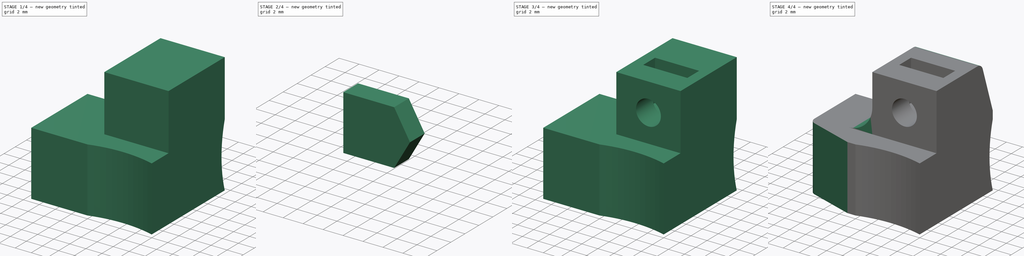
[diagram: build sequence overview — one tinted view per stage of 4, left to right]
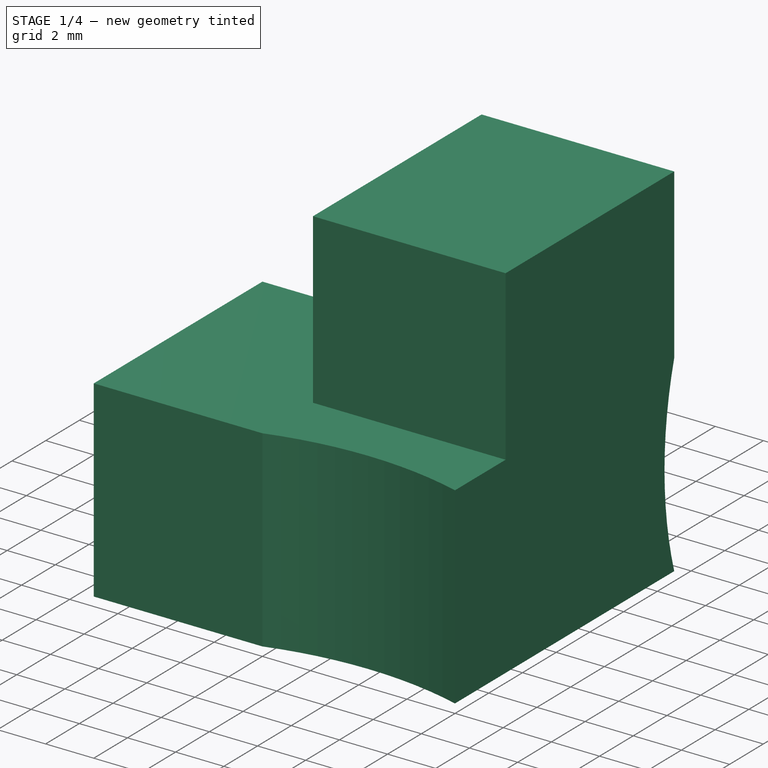
[diagram: stage 1 of 4 — iso view after this stage's code; geometry added in this stage tinted green]
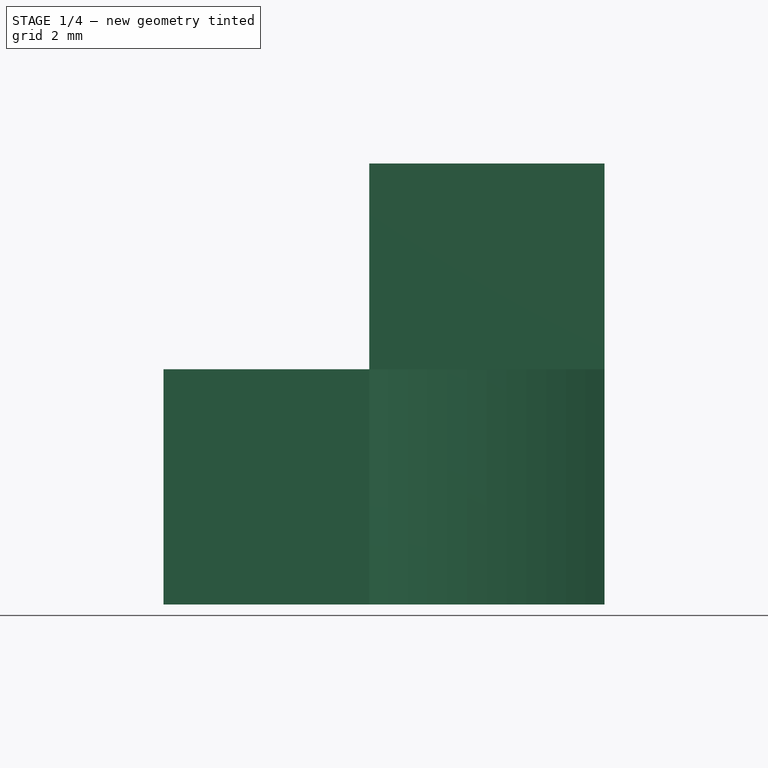
[diagram: stage 1 of 4 — front view after this stage's code; geometry added in this stage tinted green]
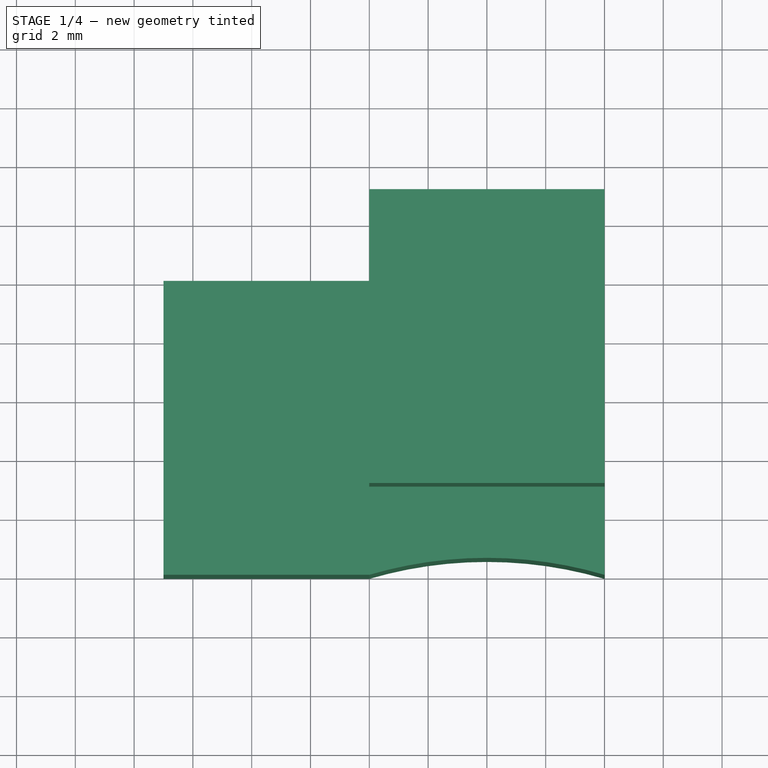
[diagram: stage 1 of 4 — top view after this stage's code; geometry added in this stage tinted green]
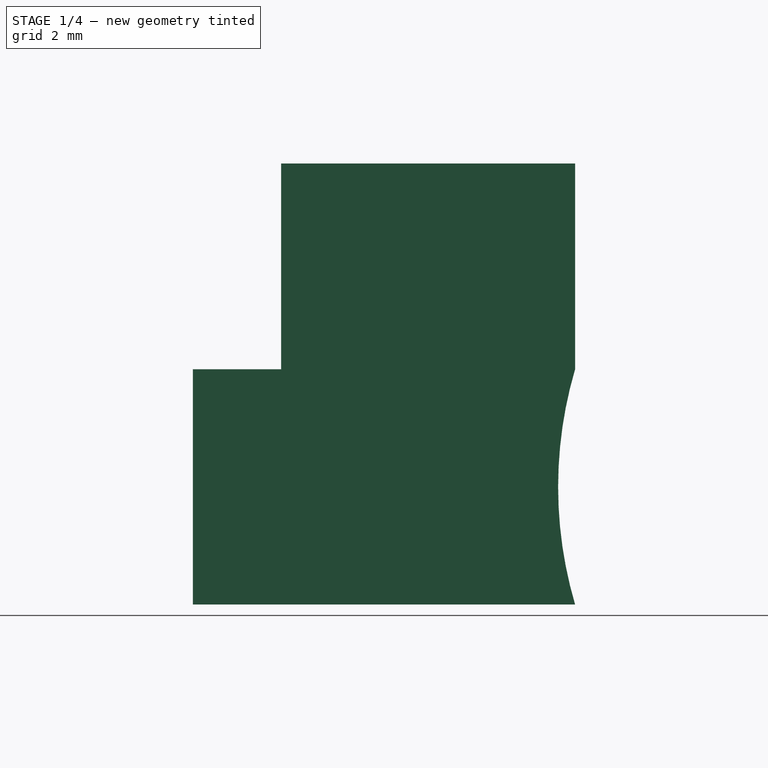
[diagram: stage 1 of 4 — right view after this stage's code; geometry added in this stage tinted green]
FCSTD DOCUMENT  (FreeCAD 0.16RUnknown)
Label: joint-base-s.010
License: All rights reserved
LicenseURL: http://en.wikipedia.org/wiki/All_rights_reserved
objects: Sketcher::SketchObject×7, Part::Extrusion×3, PartDesign::Pocket×3, Part::Cut×2, Part::Chamfer×2, PartDesign::Pad×1, Part::Fillet×1
note: 23 computed .brp shape members not serialized (recipe doc carries the construction recipe); baked Part::Feature solids carry a one-line shape summary decoded from their .brp

FEATURE [Sketcher::SketchObject] Sketch
  sketch-geometry (8):
    g0: LineSegment StartX=0 StartY=0 StartZ=0 EndX=0 EndY=3 EndZ=0
    g1: LineSegment StartX=0 StartY=3 StartZ=0 EndX=8 EndY=3 EndZ=0
    g2: LineSegment StartX=8 StartY=3 StartZ=0 EndX=8 EndY=-10 EndZ=0
    g3: LineSegment StartX=0 StartY=-10 StartZ=0 EndX=-7 EndY=-10 EndZ=0
    g4: LineSegment StartX=-7 StartY=-10 StartZ=0 EndX=-7 EndY=0 EndZ=0
    g5: LineSegment StartX=-7 StartY=0 StartZ=0 EndX=0 EndY=0 EndZ=0
    g6: LineSegment [constr] StartX=0 StartY=-10 StartZ=0 EndX=8 EndY=-10 EndZ=0
    g7: ArcOfCircle CenterX=4 CenterY=-23.5729 CenterZ=0 NormalX=0 NormalY=0 NormalZ=1 Radius=14.15 StartAngle=1.2842 EndAngle=1.85739
  constraints (23):
    c: Vertical(g0)
    c: Coincident(g0,g1)
    c: Horizontal(g1)
    c: Coincident(g1,g2)
    c: Vertical(g2)
    c: Horizontal(g3)
    c: Coincident(g3,g4)
    c: Vertical(g4)
    c: Coincident(g4,g5)
    c: Horizontal(g5)
    c: Coincident(g0,g5)
    c: DistanceY(g0,g0) = 3
    c: DistanceX(g1,g1) = 8
    c: DistanceY(g4,g4) = 10
    c: Horizontal(g6)
    c: Coincident(g3,g6)
    c: Coincident(g2,g6)
    c: Coincident(g2,g7)
    c: Coincident(g3,g7)
    c: Radius(g7) = 14.15
    c: Coincident(g0,g-1)
    c: DistanceX(g3,g3) = 7
    c: DistanceX(g6,g6) = 8
FEATURE [Part::Extrusion] Extrude
  Base = -> Sketch
  Dir = (0,0,8)
  Solid = true
FEATURE [Sketcher::SketchObject] Sketch001
  ExternalGeometry = -> [Extrude]
  Placement = pos=(0,0,8) rot=(0,0,1;0rad)
  Support = -> Extrude [Face9]
  sketch-geometry (4):
    g0: LineSegment StartX=0 StartY=3 StartZ=0 EndX=8 EndY=3 EndZ=0
    g1: LineSegment StartX=8 StartY=3 StartZ=0 EndX=8 EndY=-7 EndZ=0
    g2: LineSegment StartX=8 StartY=-7 StartZ=0 EndX=0 EndY=-7 EndZ=0
    g3: LineSegment StartX=0 StartY=-7 StartZ=0 EndX=0 EndY=3 EndZ=0
  constraints (12):
    c: Coincident(g0,g1)
    c: Coincident(g1,g2)
    c: Coincident(g2,g3)
    c: Coincident(g3,g0)
    c: Horizontal(g0)
    c: Horizontal(g2)
    c: Vertical(g1)
    c: Vertical(g3)
    c: Coincident(g0,g-3)
    c: Coincident(g0,g-4)
    c: Coincident(g0,g-3)
    c: DistanceY(g-4,g1) = 3
FEATURE [PartDesign::Pad] Pad
  Length = 7
  Length2 = 100
  Sketch = -> Sketch001
  Type = 0
FEATURE [Sketcher::SketchObject] Sketch002
  ExternalGeometry = -> [Pad]
  Placement = pos=(0,0,0) rot=(0.57735,-0.57735,-0.57735;2.0944rad)
  Support = -> Pad [Face3]
  sketch-geometry (2):
    g0: LineSegment StartX=-3 StartY=0 StartZ=0 EndX=-3 EndY=8 EndZ=0
    g1: ArcOfCircle CenterX=-16.5729 CenterY=4 CenterZ=0 NormalX=0 NormalY=0 NormalZ=1 Radius=14.15 StartAngle=5.99659 EndAngle=6.56978
  constraints (6):
    c: Vertical(g0)
    c: Coincident(g0,g-3)
    c: DistanceY(g0,g0) = 8
    c: Coincident(g0,g1)
    c: Coincident(g0,g1)
    c: Radius(g1) = 14.15
FEATURE [PartDesign::Pocket] Pocket
  Length = 5
  Sketch = -> Sketch002
  Type = 1
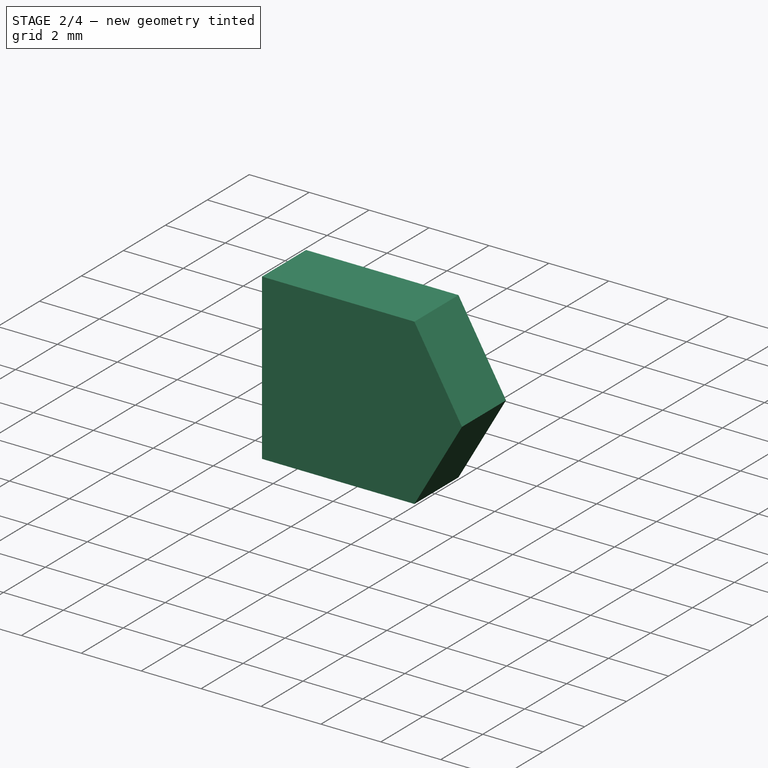
[diagram: stage 2 of 4 — iso view after this stage's code; geometry added in this stage tinted green]
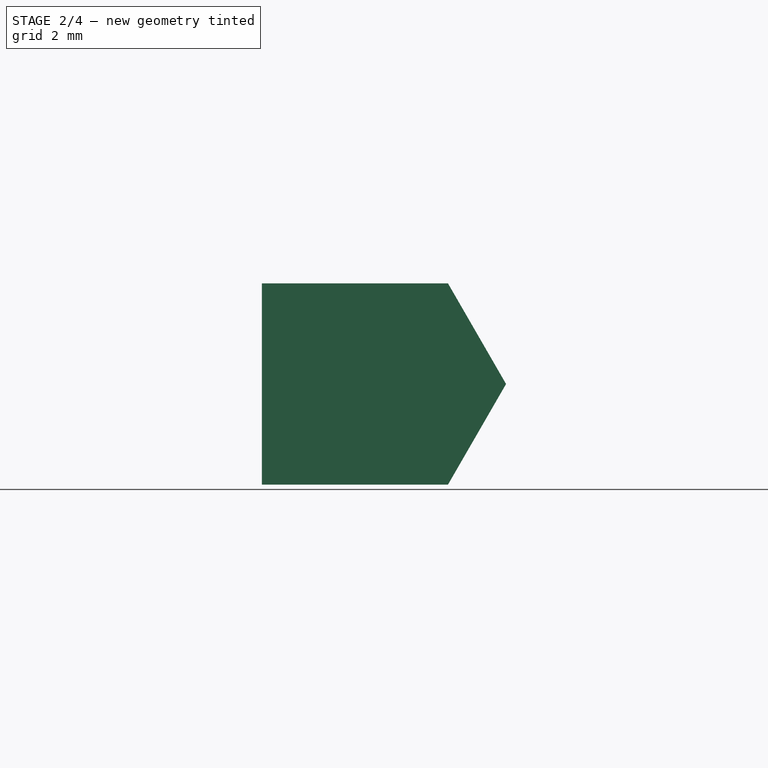
[diagram: stage 2 of 4 — front view after this stage's code; geometry added in this stage tinted green]
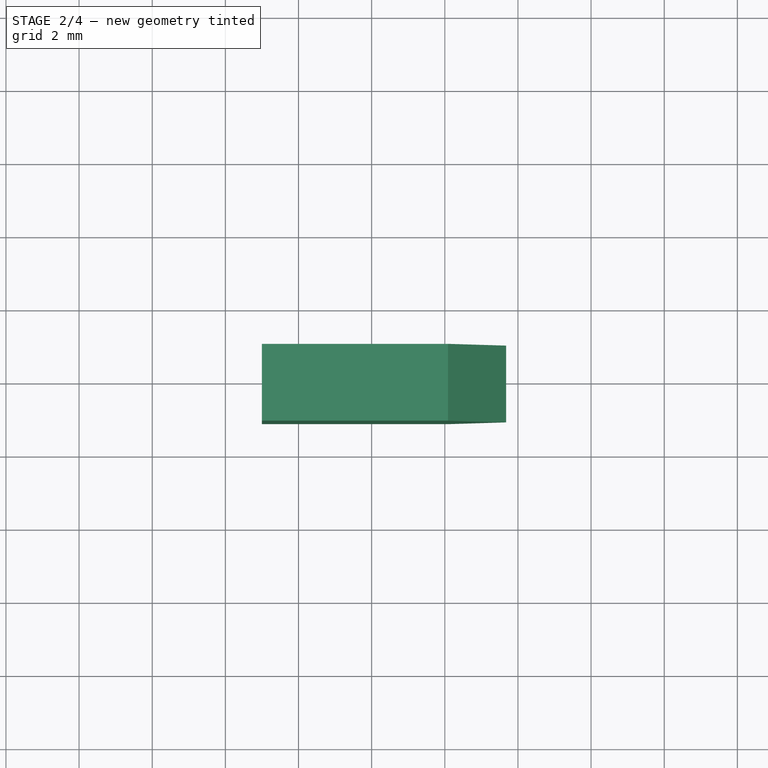
[diagram: stage 2 of 4 — top view after this stage's code; geometry added in this stage tinted green]
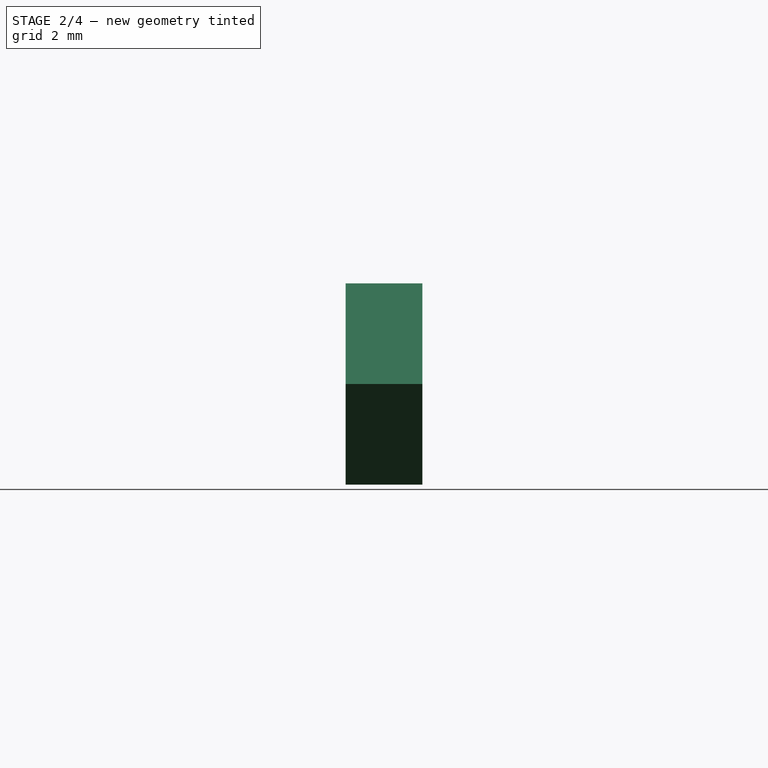
[diagram: stage 2 of 4 — right view after this stage's code; geometry added in this stage tinted green]
FEATURE [Sketcher::SketchObject] Sketch003
  ExternalGeometry = -> [Pocket]
  Placement = pos=(0,0,0) rot=(0,0.707107,0.707107;3.14159rad)
  Support = -> Pocket [Face1]
  sketch-geometry (3):
    g0: LineSegment [constr] StartX=0 StartY=8 StartZ=0 EndX=3.5 EndY=4 EndZ=0
    g1: LineSegment [constr] StartX=3.5 StartY=4 StartZ=0 EndX=7 EndY=0 EndZ=0
    g2: Circle CenterX=3.5 CenterY=4 CenterZ=0 NormalX=0 NormalY=0 NormalZ=1 Radius=1.55
  constraints (7):
    c: Coincident(g0,g1)
    c: Coincident(g1,g-3)
    c: Coincident(g0,g-4)
    c: Equal(g0,g1)
    c: Parallel(g0,g1)
    c: Coincident(g0,g2)
    c: Radius(g2) = 1.55
FEATURE [PartDesign::Pocket] Pocket001
  Length = 7
  Sketch = -> Sketch003
  Type = 0
FEATURE [Sketcher::SketchObject] Sketch004
  ExternalGeometry = -> [Pocket001]
  Placement = pos=(0,-7,0) rot=(1,0,0;1.5708rad)
  Support = -> Pocket001 [Face11]
  sketch-geometry (3):
    g0: LineSegment [constr] StartX=0 StartY=8 StartZ=0 EndX=4 EndY=11.5 EndZ=0
    g1: LineSegment [constr] StartX=4 StartY=11.5 StartZ=0 EndX=8 EndY=15 EndZ=0
    g2: Circle CenterX=4 CenterY=11.5 CenterZ=0 NormalX=0 NormalY=0 NormalZ=1 Radius=1.55
  constraints (7):
    c: Coincident(g0,g1)
    c: Coincident(g1,g-3)
    c: Coincident(g0,g-4)
    c: Equal(g0,g1)
    c: Parallel(g0,g1)
    c: Coincident(g0,g2)
    c: Radius(g2) = 1.55
FEATURE [PartDesign::Pocket] Pocket002
  Length = 7
  Sketch = -> Sketch004
  Type = 0
FEATURE [Sketcher::SketchObject] Sketch005
  ExternalGeometry = -> [Pocket002]
  Placement = pos=(0,0,0) rot=(0,0.707107,0.707107;3.14159rad)
  Support = -> Pocket002 [Face1]
  sketch-geometry (6):
    g0: LineSegment [constr] StartX=3.5 StartY=4 StartZ=0 EndX=0.324574 EndY=4 EndZ=0
    g1: LineSegment StartX=0.324574 StartY=4 StartZ=0 EndX=1.91229 EndY=6.75 EndZ=0
    g2: LineSegment StartX=1.91229 StartY=6.75 StartZ=0 EndX=7 EndY=6.75 EndZ=0
    g3: LineSegment StartX=7 StartY=6.75 StartZ=0 EndX=7 EndY=1.25 EndZ=0
    g4: LineSegment StartX=7 StartY=1.25 StartZ=0 EndX=1.91229 EndY=1.25 EndZ=0
    g5: LineSegment StartX=1.91229 StartY=1.25 StartZ=0 EndX=0.324574 EndY=4 EndZ=0
  constraints (17):
    c: Horizontal(g0)
    c: Coincident(g0,g1)
    c: Coincident(g1,g2)
    c: Horizontal(g2)
    c: Coincident(g2,g3)
    c: Vertical(g3)
    c: Coincident(g3,g4)
    c: Horizontal(g4)
    c: Coincident(g4,g5)
    c: Coincident(g0,g5)
    c: Coincident(g0,g-4)
    c: Equal(g0,g5)
    c: Equal(g5,g1)
    c: Angle(g5,g1) = 2.0944
    c: DistanceY(g3,g3) = 5.5
    c: PointOnObject(g2,g-3)
    c: Equal(g2,g4)
FEATURE [Part::Extrusion] Extrude001
  Base = -> Sketch005
  Dir = (0,-2.1,0)
  Placement = pos=(0,-3,0) rot=(0,0,1;0rad)
  Solid = true
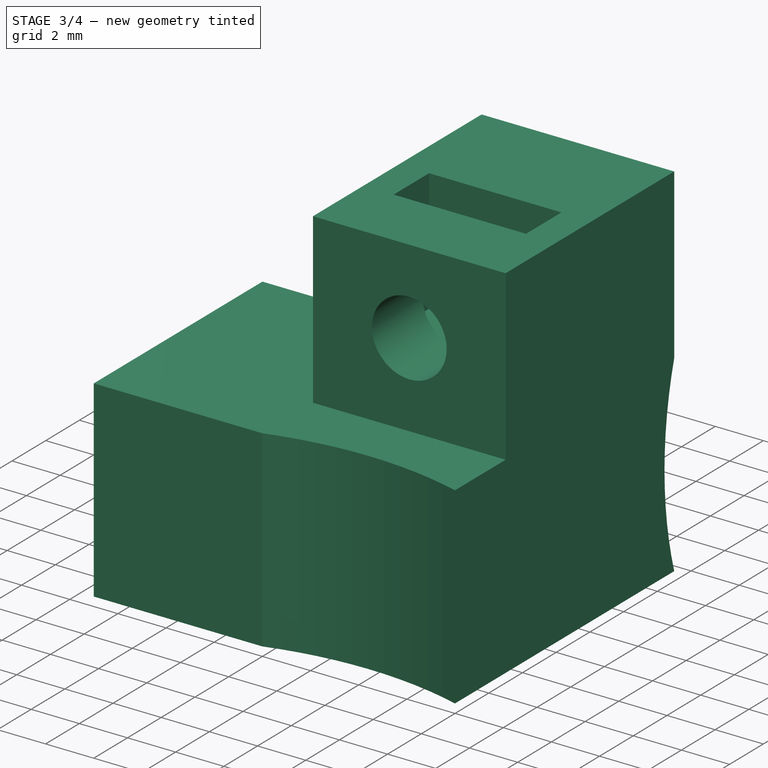
[diagram: stage 3 of 4 — iso view after this stage's code; geometry added in this stage tinted green]
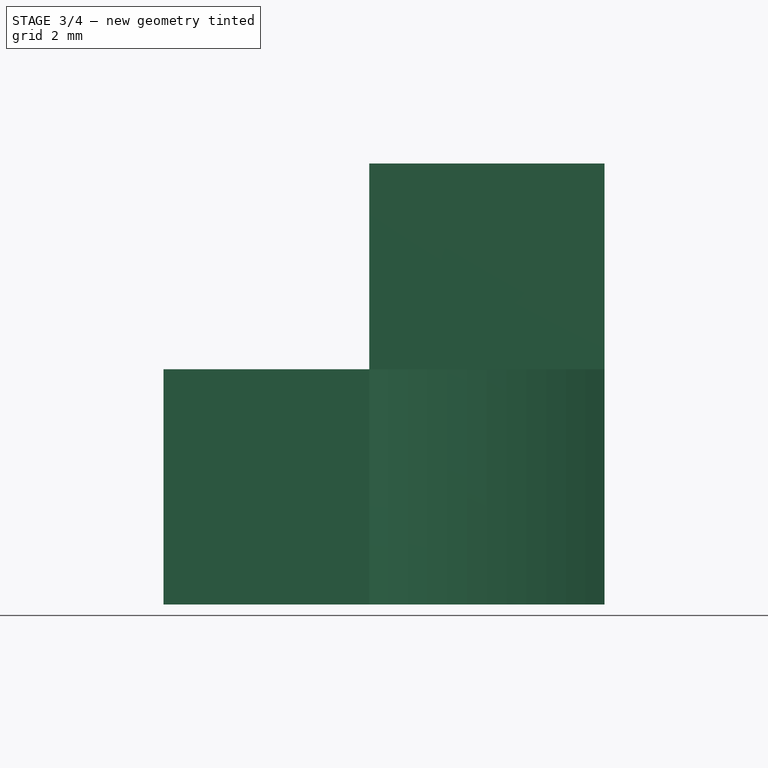
[diagram: stage 3 of 4 — front view after this stage's code; geometry added in this stage tinted green]
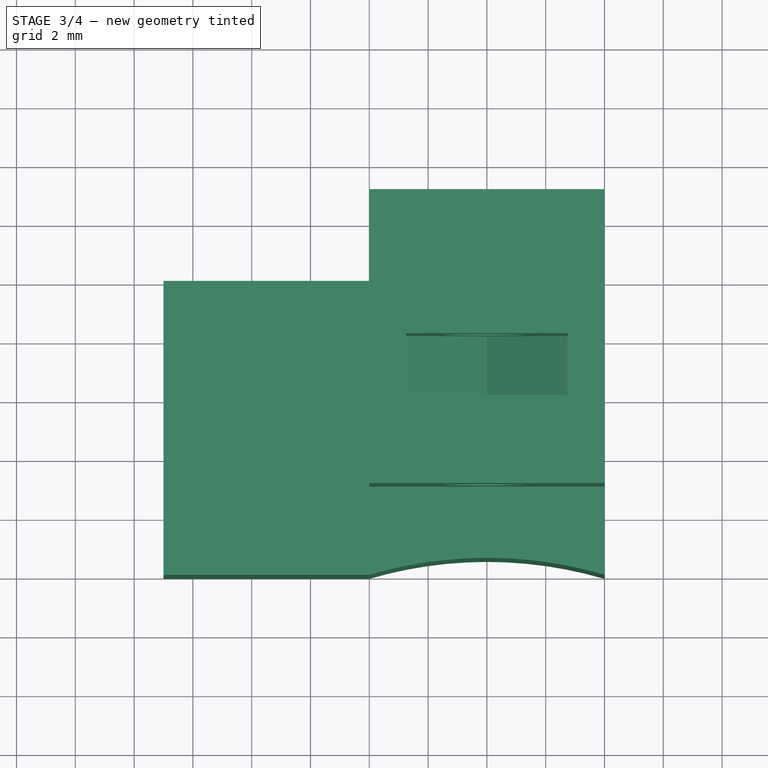
[diagram: stage 3 of 4 — top view after this stage's code; geometry added in this stage tinted green]
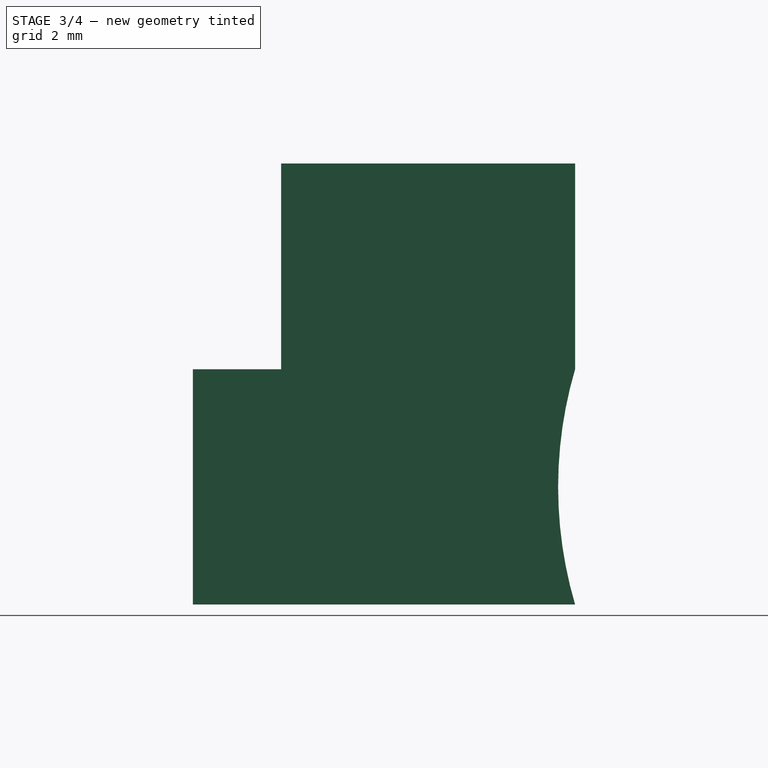
[diagram: stage 3 of 4 — right view after this stage's code; geometry added in this stage tinted green]
FEATURE [Part::Cut] Cut
  Base = -> Pocket002
  Tool = -> Extrude001
FEATURE [Sketcher::SketchObject] Sketch006
  ExternalGeometry = -> [Cut]
  Placement = pos=(0,-7,0) rot=(1,0,0;1.5708rad)
  Support = -> Cut [Face15]
  sketch-geometry (6):
    g0: LineSegment [constr] StartX=4 StartY=11.5 StartZ=0 EndX=4 EndY=8.32457 EndZ=0
    g1: LineSegment StartX=4 StartY=8.32457 StartZ=0 EndX=1.25 EndY=9.91229 EndZ=0
    g2: LineSegment StartX=1.25 StartY=9.91229 StartZ=0 EndX=1.25 EndY=15 EndZ=0
    g3: LineSegment StartX=1.25 StartY=15 StartZ=0 EndX=6.75 EndY=15 EndZ=0
    g4: LineSegment StartX=6.75 StartY=15 StartZ=0 EndX=6.75 EndY=9.91229 EndZ=0
    g5: LineSegment StartX=6.75 StartY=9.91229 StartZ=0 EndX=4 EndY=8.32457 EndZ=0
  constraints (17):
    c: Vertical(g0)
    c: Coincident(g0,g1)
    c: Coincident(g1,g2)
    c: Vertical(g2)
    c: Coincident(g2,g3)
    c: Horizontal(g3)
    c: Coincident(g3,g4)
    c: Vertical(g4)
    c: Coincident(g4,g5)
    c: Coincident(g0,g5)
    c: Coincident(g0,g-4)
    c: Equal(g1,g0)
    c: Equal(g0,g5)
    c: Angle(g5,g1) = 2.0944
    c: Equal(g2,g4)
    c: DistanceX(g3,g3) = 5.5
    c: PointOnObject(g2,g-3)
FEATURE [Part::Extrusion] Extrude002
  Base = -> Sketch006
  Dir = (0,2.1,0)
  Placement = pos=(0,3,0) rot=(0,0,1;0rad)
  Solid = true
FEATURE [Part::Cut] Cut001
  Base = -> Cut
  Tool = -> Extrude002
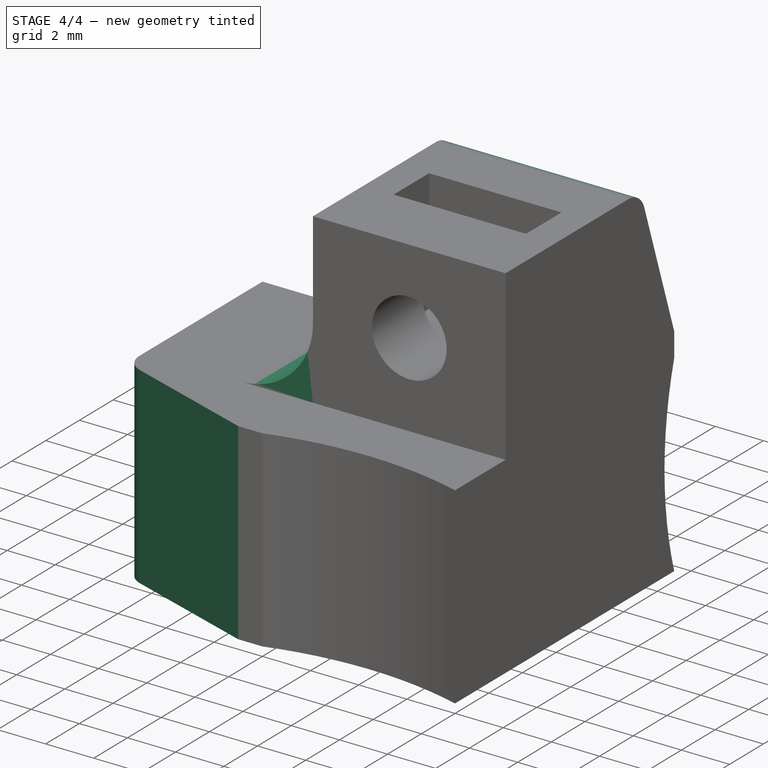
[diagram: stage 4 of 4 — iso view after this stage's code; geometry added in this stage tinted green]
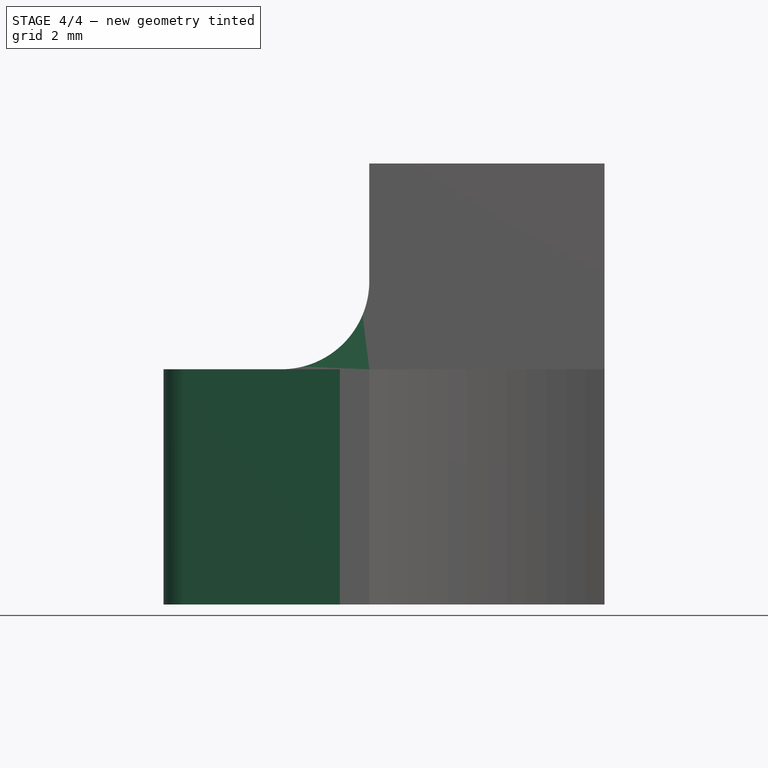
[diagram: stage 4 of 4 — front view after this stage's code; geometry added in this stage tinted green]
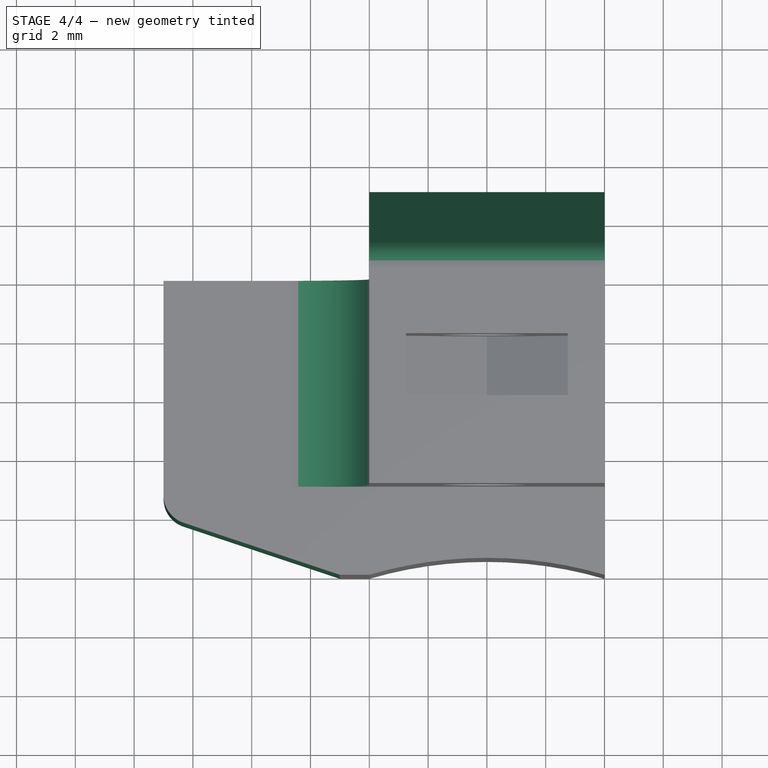
[diagram: stage 4 of 4 — top view after this stage's code; geometry added in this stage tinted green]
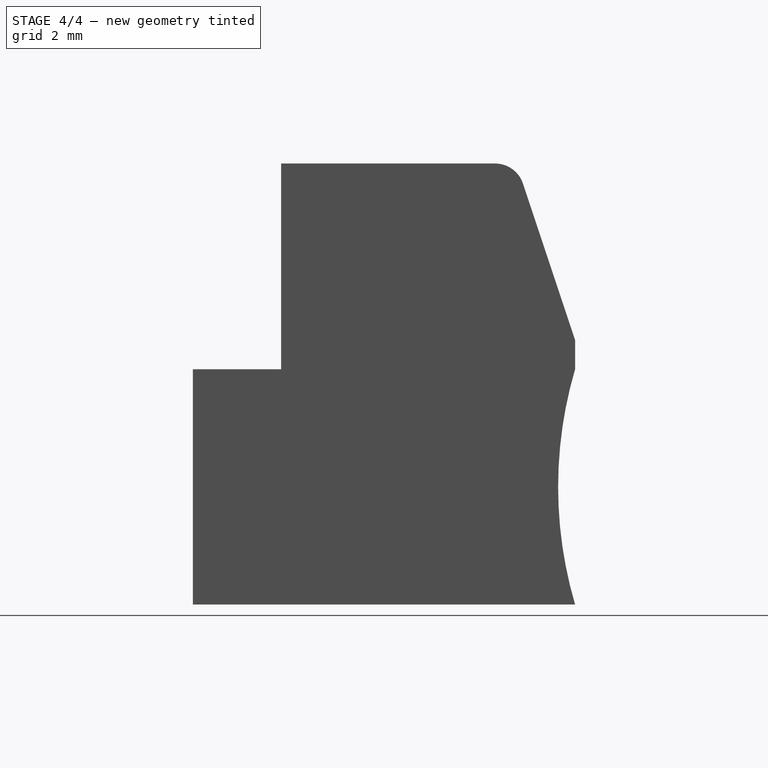
[diagram: stage 4 of 4 — right view after this stage's code; geometry added in this stage tinted green]
FEATURE [Part::Chamfer] Chamfer
  Base = -> Cut001
  Edges = 1 edges: [Edge52 r1=6 r2=2]
FEATURE [Part::Chamfer] Chamfer001
  Base = -> Chamfer
  Edges = 1 edges: [Edge48 r1=2 r2=6]
FEATURE [Part::Fillet] Fillet
  Base = -> Chamfer001
  Edges = 3 edges: [Edge5 r=3,Edge10 r=1,Edge52 r=1]
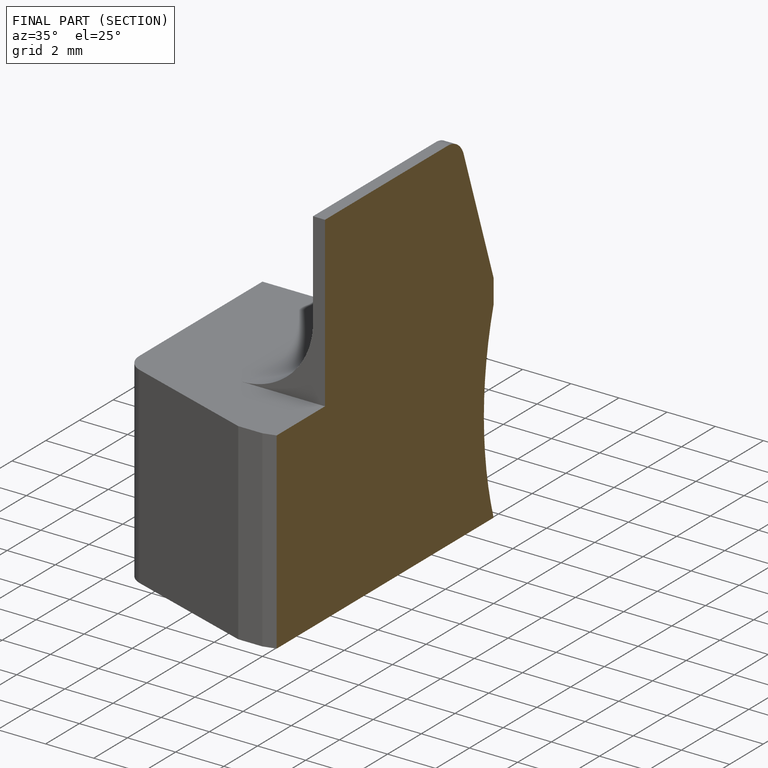
[diagram: finished part — half-section view (interior)]
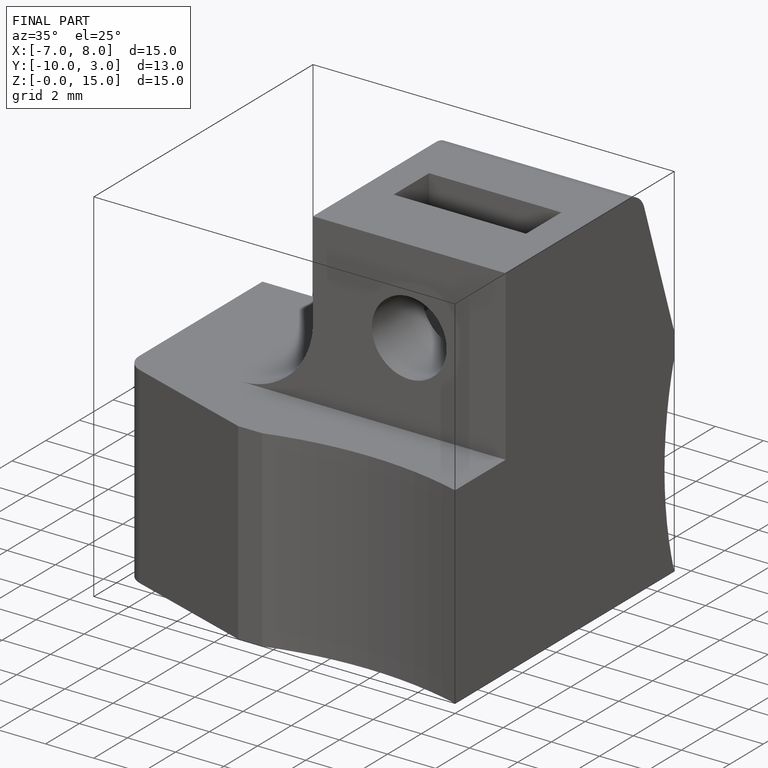
[diagram: finished part — iso view with bounding-box wireframe]
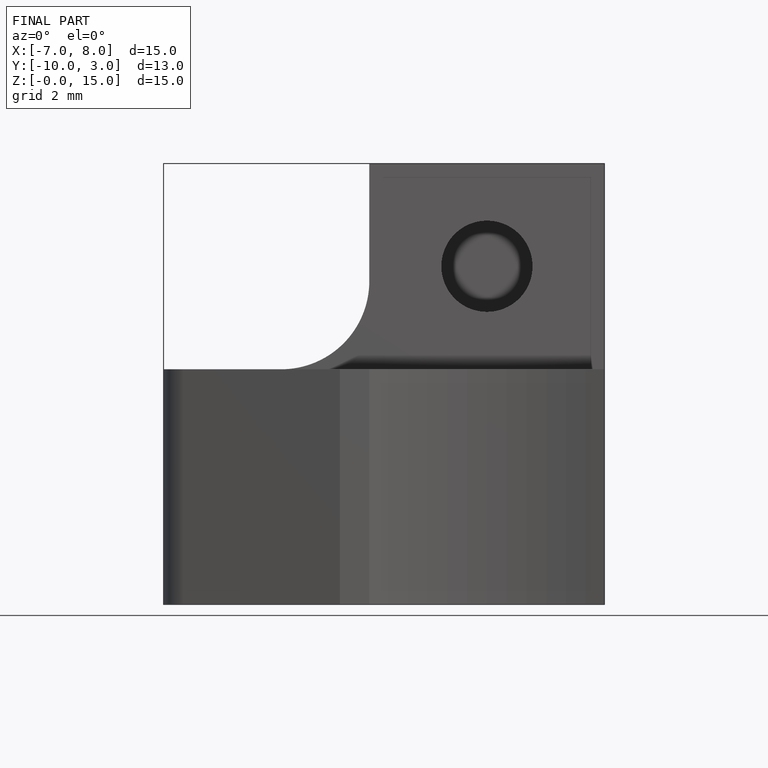
[diagram: finished part — front view with bounding-box wireframe]
